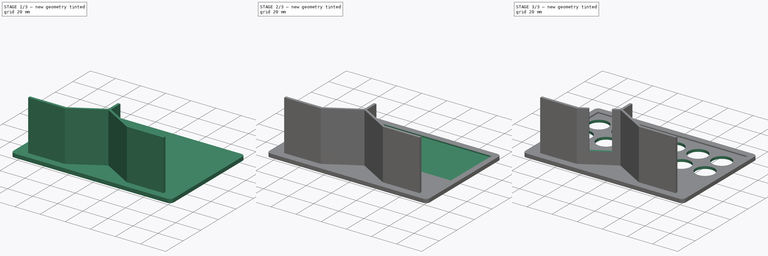
[diagram: build sequence overview — one tinted view per stage of 3, left to right]
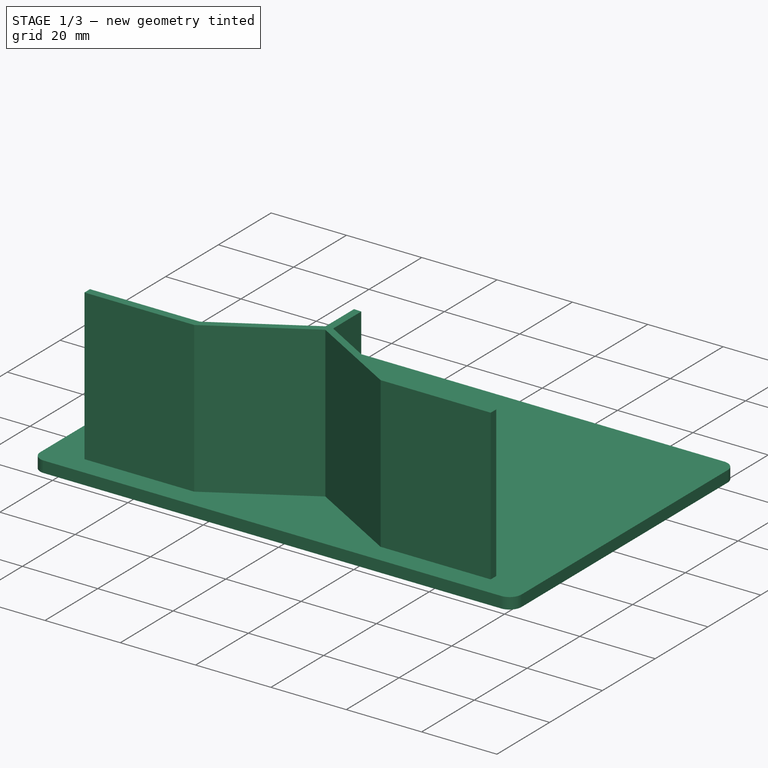
[diagram: stage 1 of 3 — iso view after this stage's code; geometry added in this stage tinted green]
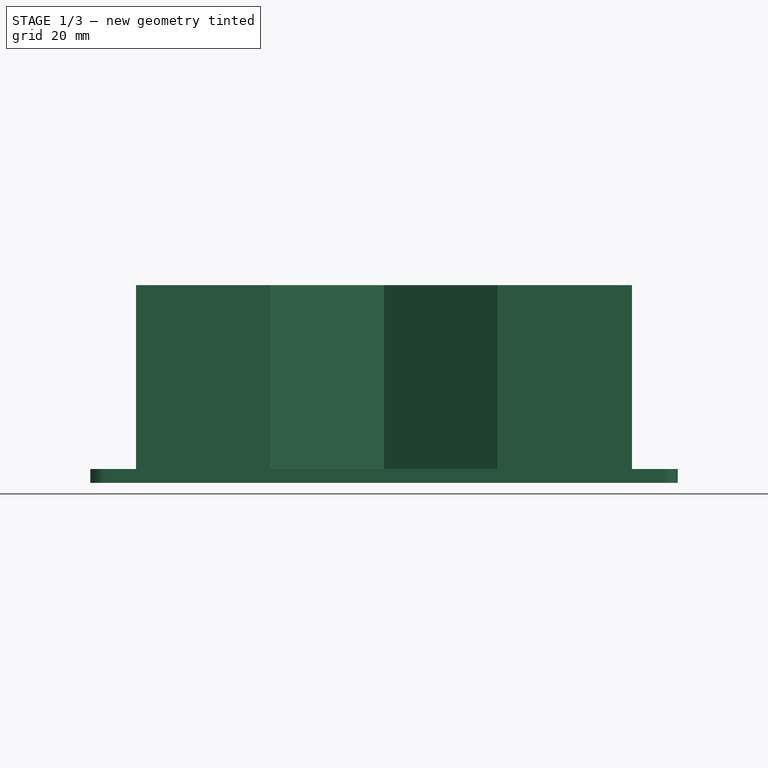
[diagram: stage 1 of 3 — front view after this stage's code; geometry added in this stage tinted green]
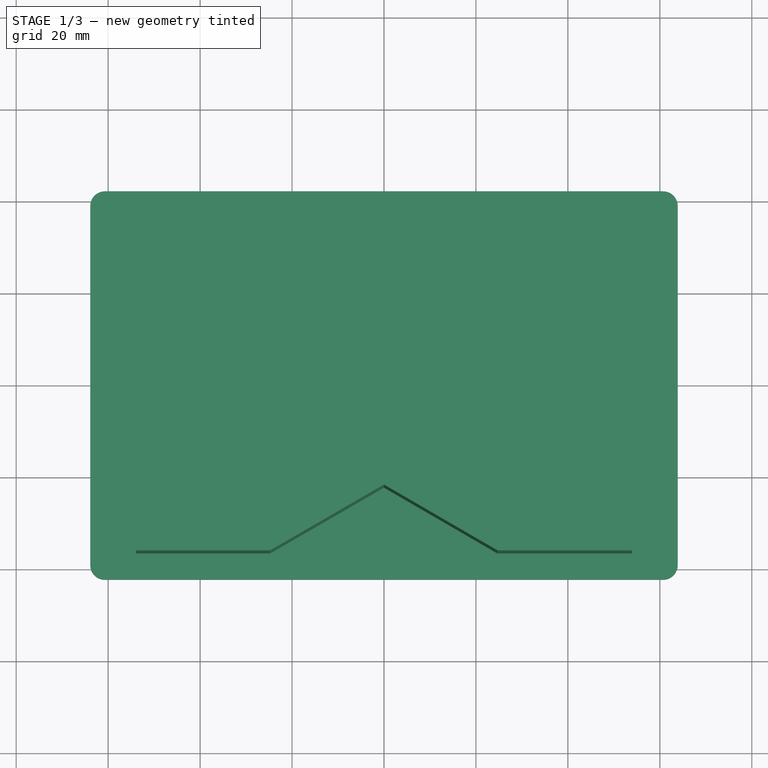
[diagram: stage 1 of 3 — top view after this stage's code; geometry added in this stage tinted green]
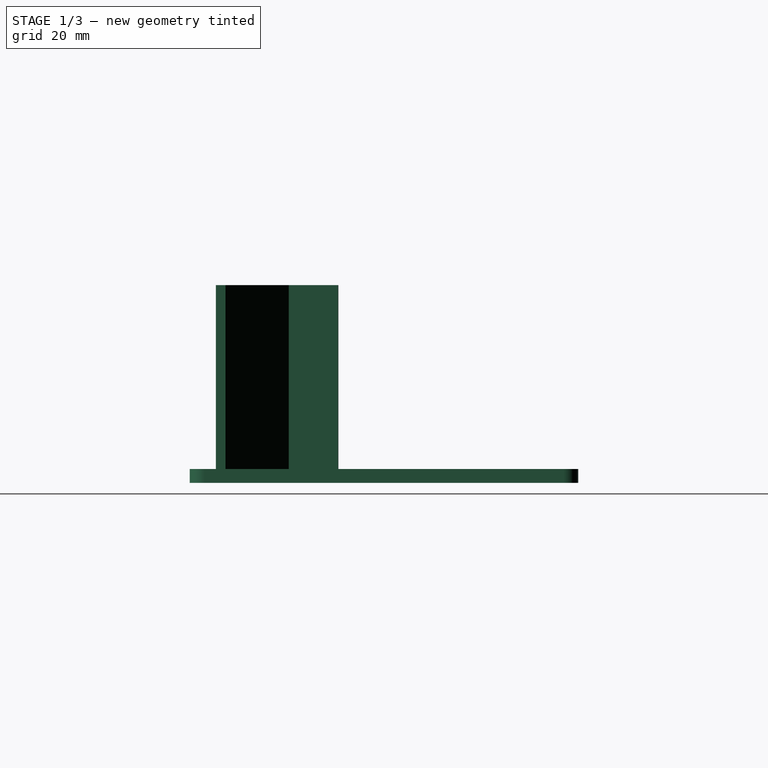
[diagram: stage 1 of 3 — right view after this stage's code; geometry added in this stage tinted green]
FCSTD DOCUMENT  (FreeCAD 0.21R33694 (Git))
Label: collector
License: All rights reserved
LicenseURL: http://en.wikipedia.org/wiki/All_rights_reserved
objects: Sketcher::SketchObject×5, PartDesign::Pocket×3, PartDesign::Pad×2, Spreadsheet::Sheet×1, PartDesign::Body×1
note: 16 computed .brp shape members not serialized (recipe doc carries the construction recipe); baked Part::Feature solids carry a one-line shape summary decoded from their .brp

FEATURE [Sketcher::SketchObject] Sketch  label="sketch_base"
  FullyConstrained = true
  expr: .Constraints.demi_largeur = 127.76 / 2
  expr: Constraints[13] = .Constraints.demi_hauteur
  expr: Constraints[15] = .Constraints.demi_largeur
  sketch-geometry (8):
    g0: LineSegment StartX=-60.7 StartY=42.24 StartZ=0 EndX=60.7 EndY=42.24 EndZ=0
    g1: LineSegment StartX=63.88 StartY=39.06 StartZ=0 EndX=63.88 EndY=-39.06 EndZ=0
    g2: LineSegment StartX=60.7 StartY=-42.24 StartZ=0 EndX=-60.7 EndY=-42.24 EndZ=0
    g3: LineSegment StartX=-63.88 StartY=-39.06 StartZ=0 EndX=-63.88 EndY=39.06 EndZ=0
    g4: ArcOfCircle CenterX=-60.7 CenterY=39.06 CenterZ=0 NormalX=0 NormalY=0 NormalZ=1 AngleXU=0 Radius=3.18 StartAngle=1.5708 EndAngle=3.14159
    g5: ArcOfCircle CenterX=60.7 CenterY=39.06 CenterZ=0 NormalX=0 NormalY=0 NormalZ=1 AngleXU=0 Radius=3.18 StartAngle=-9e-16 EndAngle=1.5708
    g6: ArcOfCircle CenterX=-60.7 CenterY=-39.06 CenterZ=0 NormalX=0 NormalY=0 NormalZ=1 AngleXU=0 Radius=3.18 StartAngle=3.14159 EndAngle=4.71239
    g7: ArcOfCircle CenterX=60.7 CenterY=-39.06 CenterZ=0 NormalX=0 NormalY=0 NormalZ=1 AngleXU=0 Radius=3.18 StartAngle=4.71239 EndAngle=6.28319
  constraints (20):
    c: Horizontal(g0)
    c: Horizontal(g2)
    c: Vertical(g1)
    c: Vertical(g3)
    c: Tangent(g0,g4) = 1.5708
    c: Tangent(g3,g4) = 1.5708
    c: Tangent(g0,g5) = 1.5708
    c: Tangent(g1,g5) = 1.5708
    c: Tangent(g3,g6) = 1.5708
    c: Tangent(g2,g6) = 1.5708
    c: Tangent(g2,g7) = 1.5708
    c: Tangent(g1,g7) = 1.5708
    c: DistanceY(g-1,g0) = 42.24  'demi_hauteur'
    c: DistanceY(g2,g-1) = 42.24
    c: DistanceX(g3,g-1) = 63.88  'demi_largeur'
    c: DistanceX(g-1,g1) = 63.88
    c: Radius(g4) = 3.18
    c: Radius(g5) = 3.18
    c: Equal(g5,g7)
    c: Equal(g5,g6)
FEATURE [PartDesign::Pad] Pad
  AllowMultiFace = false
  Direction = (0,0,1)
  Length = 3
  Length2 = 100
  Profile = -> Sketch
  ReferenceAxis = -> Sketch [N_Axis]
  Type = 0
FEATURE [Spreadsheet::Sheet] Spreadsheet
  cells = A1='r_pot; B1(r_pot)==35.06 / 2; C1='rayon strict du pot à urines; A2='angle_pot; B2(angle_pot)=5; C2='angle d'inclinaison; A3='r_eps; B3(r_eps)=0.5; C3='valeur de jeu
FEATURE [Sketcher::SketchObject] Sketch001  label="front_sketch"
  ExternalGeometry = -> [Pad]
  FullyConstrained = false
  MapMode = 5
  Placement = pos=(0,0,3) rot=(0,0,1;0rad)
  Support = -> [Pad]
  sketch-geometry (16):
    g0: LineSegment StartX=24.688 StartY=-34.4639 StartZ=0 EndX=53.9357 EndY=-34.4639 EndZ=0
    g1: LineSegment StartX=53.9357 StartY=-34.4639 StartZ=0 EndX=53.9357 EndY=-36.5602 EndZ=0
    g2: LineSegment StartX=53.9357 StartY=-36.5602 StartZ=0 EndX=24.688 EndY=-36.5602 EndZ=0
    g3: LineSegment StartX=24.688 StartY=-36.5602 StartZ=0 EndX=0 EndY=-22.24 EndZ=0
    g4: LineSegment StartX=0 StartY=-22.24 StartZ=0 EndX=-24.7821 EndY=-36.5579 EndZ=0
    g5: LineSegment StartX=-24.7821 StartY=-36.5579 StartZ=0 EndX=-53.9357 EndY=-36.5579 EndZ=0
    g6: LineSegment StartX=-53.9357 StartY=-36.5579 StartZ=0 EndX=-53.9357 EndY=-34.4639 EndZ=0
    g7: LineSegment StartX=-53.9357 StartY=-34.4639 StartZ=0 EndX=-24.7821 EndY=-34.4639 EndZ=0
    g8: GeomPoint X=0 Y=-42.24 Z=0
    g9: GeomPoint X=-1 Y=-20.7238 Z=0
    g10: GeomPoint X=1 Y=-20.7238 Z=0
    g11: LineSegment StartX=-1 StartY=-20.7238 StartZ=0 EndX=-24.7821 EndY=-34.4639 EndZ=0
    g12: LineSegment StartX=24.688 StartY=-34.4639 StartZ=0 EndX=1 EndY=-20.7238 EndZ=0
    g13: LineSegment StartX=-1 StartY=-20.7238 StartZ=0 EndX=-1 EndY=-9.93128 EndZ=0
    g14: LineSegment StartX=-1 StartY=-9.93128 StartZ=0 EndX=1 EndY=-10.0377 EndZ=0
    g15: LineSegment StartX=1 StartY=-10.0377 StartZ=0 EndX=1 EndY=-20.7238 EndZ=0
  constraints (33):
    c: Horizontal(g0)
    c: Coincident(g0,g1)
    c: Coincident(g1,g2)
    c: Horizontal(g2)
    c: Coincident(g2,g3)
    c: PointOnObject(g3,g-2)
    c: Coincident(g3,g4)
    c: Coincident(g4,g5)
    c: Horizontal(g5)
    c: Coincident(g5,g6)
    c: Coincident(g6,g7)
    c: Horizontal(g7)
    c: Vertical(g6)
    c: Vertical(g1)
    c: Vertical(g4,g7)
    c: Vertical(g0,g2)
    c: Symmetric(g6,g0,g-2)
    c: PointOnObject(g8,g-4)
    c: DistanceY(g8,g3) = 20
    c: Coincident(g11,g9)
    c: Coincident(g11,g7)
    c: Coincident(g12,g0)
    c: Coincident(g12,g10)
    c: Parallel(g11,g4)
    c: Parallel(g3,g12)
    c: Symmetric(g12,g11,g-2)
    c: DistanceX(g11,g12) = 2
    c: Coincident(g11,g13)
    c: Vertical(g13)
    c: Coincident(g13,g14)
    c: Coincident(g14,g15)
    c: Coincident(g15,g12)
    c: Vertical(g15)
FEATURE [PartDesign::Pad] Pad001  label="front"
  BaseFeature = -> Pad
  Direction = (0,0,1)
  Length = 40
  Length2 = 10
  Profile = -> Sketch001
  ReferenceAxis = -> Sketch001 [N_Axis]
  Type = 0
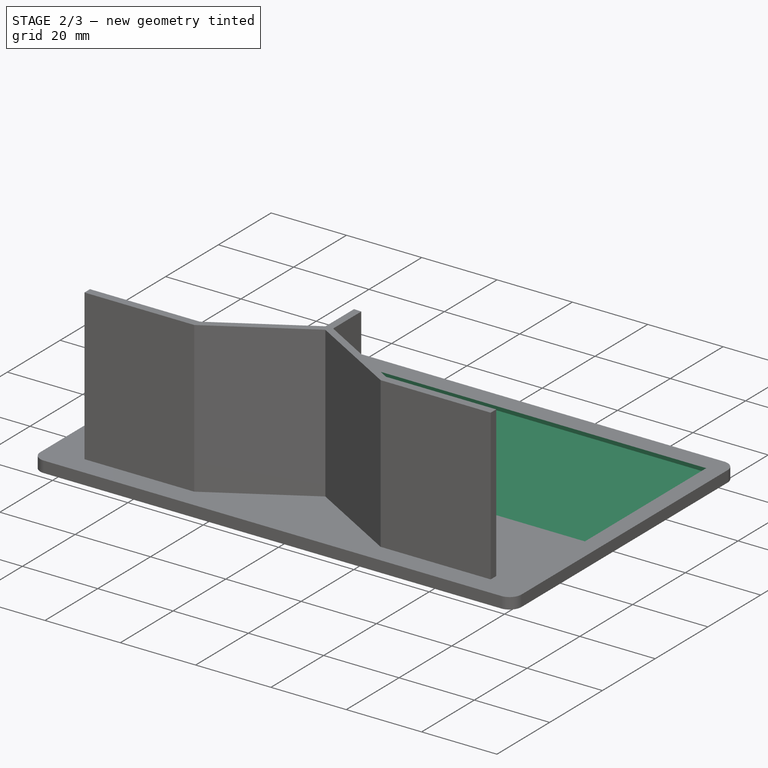
[diagram: stage 2 of 3 — iso view after this stage's code; geometry added in this stage tinted green]
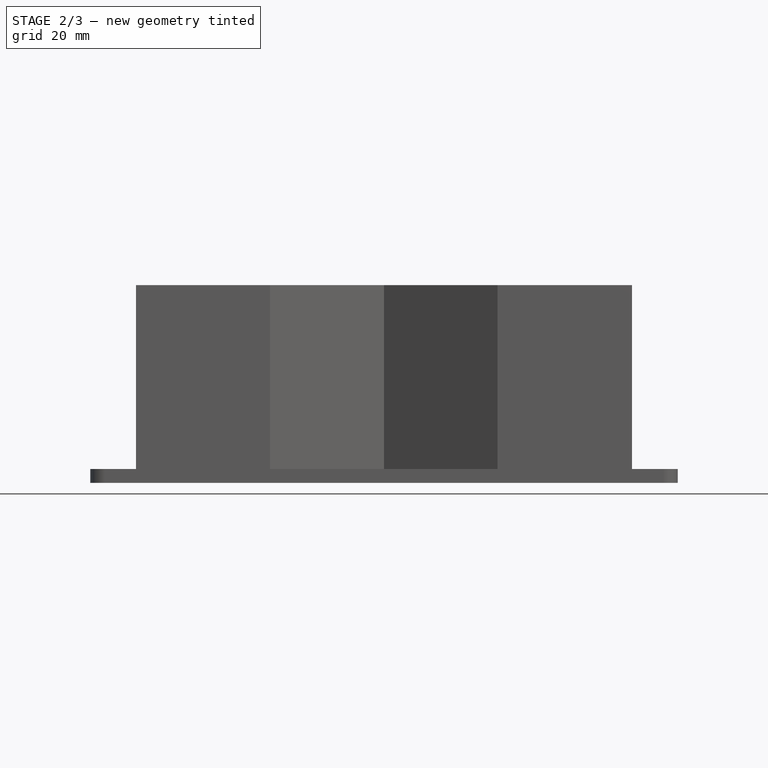
[diagram: stage 2 of 3 — front view after this stage's code; geometry added in this stage tinted green]
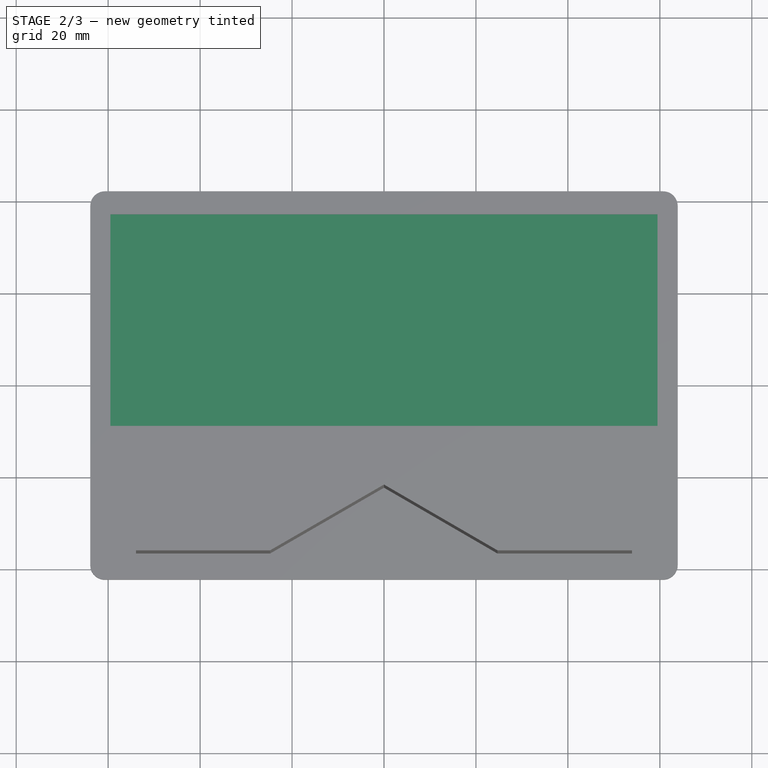
[diagram: stage 2 of 3 — top view after this stage's code; geometry added in this stage tinted green]
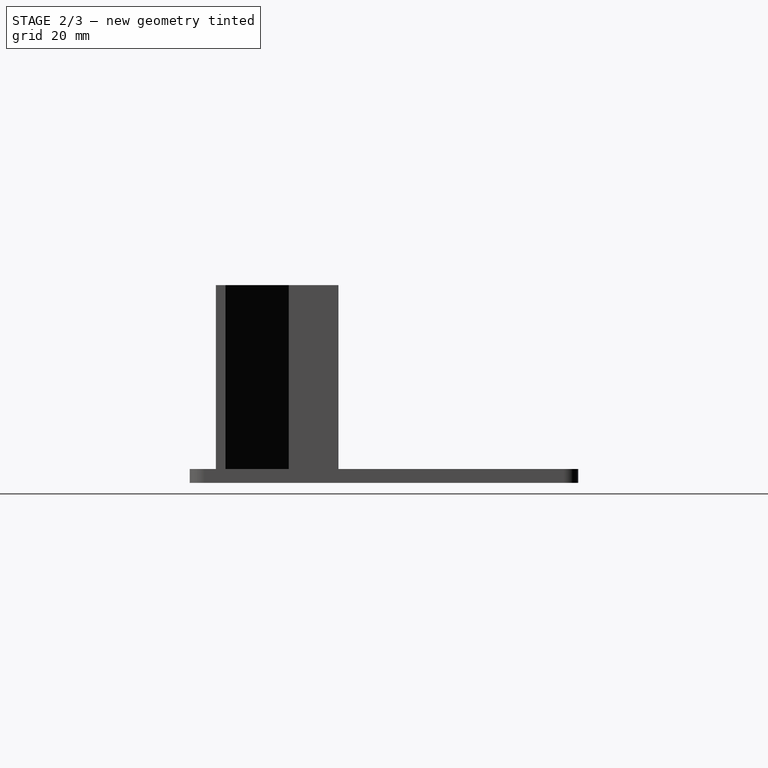
[diagram: stage 2 of 3 — right view after this stage's code; geometry added in this stage tinted green]
FEATURE [Sketcher::SketchObject] Sketch002
  FullyConstrained = false
  MapMode = 5
  Placement = pos=(0,0,3) rot=(0,0,1;0rad)
  Support = -> [Pad001]
  sketch-geometry (4):
    g0: LineSegment StartX=-59.5 StartY=37.2147 StartZ=0 EndX=59.5 EndY=37.2147 EndZ=0
    g1: LineSegment StartX=59.5 StartY=37.2147 StartZ=0 EndX=59.5 EndY=-8.78534 EndZ=0
    g2: LineSegment StartX=59.5 StartY=-8.78534 StartZ=0 EndX=-59.5 EndY=-8.78534 EndZ=0
    g3: LineSegment StartX=-59.5 StartY=-8.78534 StartZ=0 EndX=-59.5 EndY=37.2147 EndZ=0
  constraints (10):
    c: Coincident(g0,g1)
    c: Coincident(g1,g2)
    c: Coincident(g2,g3)
    c: Coincident(g3,g0)
    c: Horizontal(g0)
    c: Vertical(g1)
    c: Vertical(g3)
    c: DistanceX(g0,g0) = 119
    c: DistanceY(g1,g0) = 46
    c: Symmetric(g1,g2,g-2)
FEATURE [PartDesign::Pocket] Pocket  label="breadboard"
  BaseFeature = -> Pad001
  Direction = (0,0,-1)
  Length = 1
  Length2 = 5
  Profile = -> Sketch002
  ReferenceAxis = -> Sketch002 [N_Axis]
  Type = 0
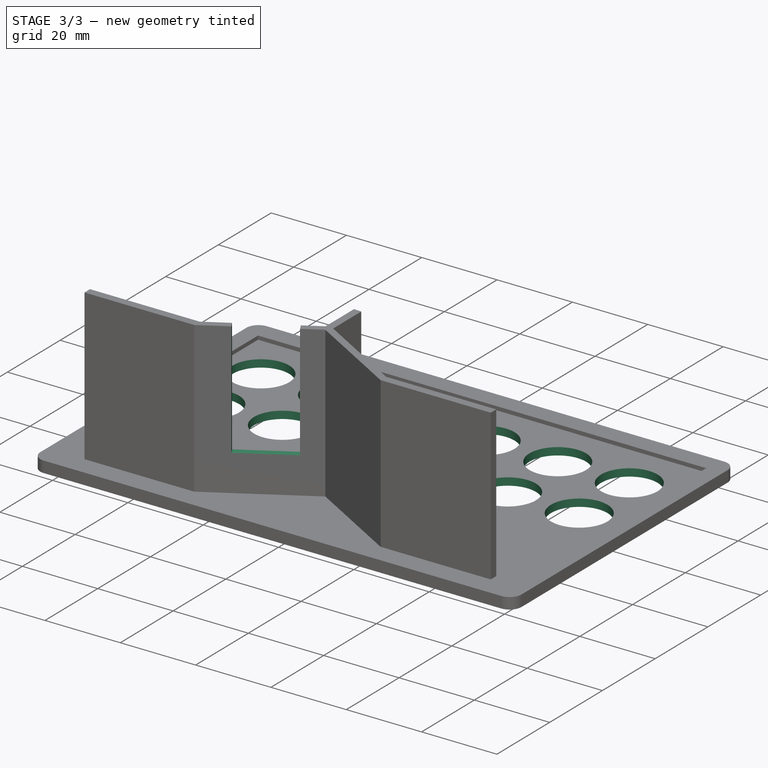
[diagram: stage 3 of 3 — iso view after this stage's code; geometry added in this stage tinted green]
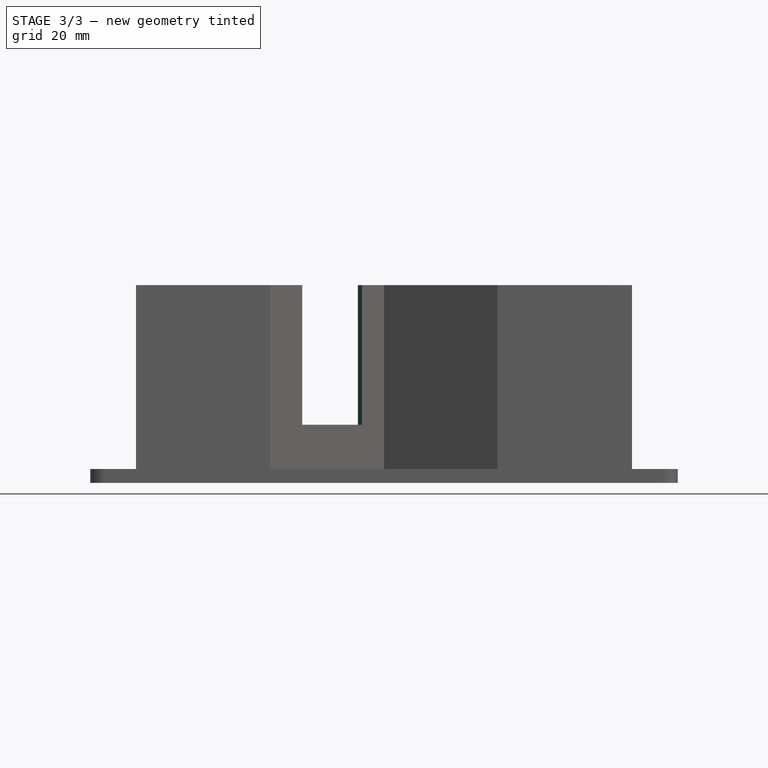
[diagram: stage 3 of 3 — front view after this stage's code; geometry added in this stage tinted green]
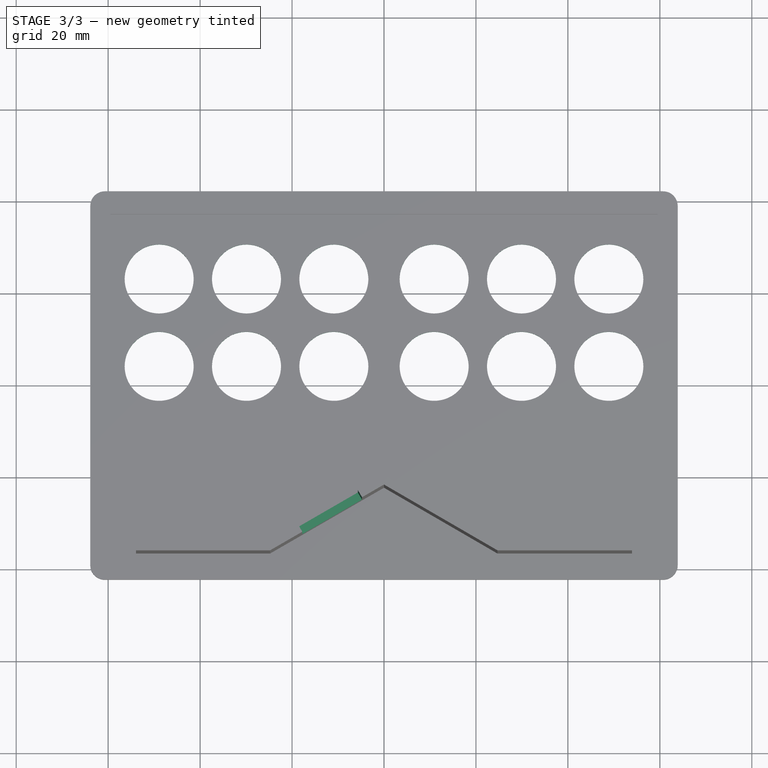
[diagram: stage 3 of 3 — top view after this stage's code; geometry added in this stage tinted green]
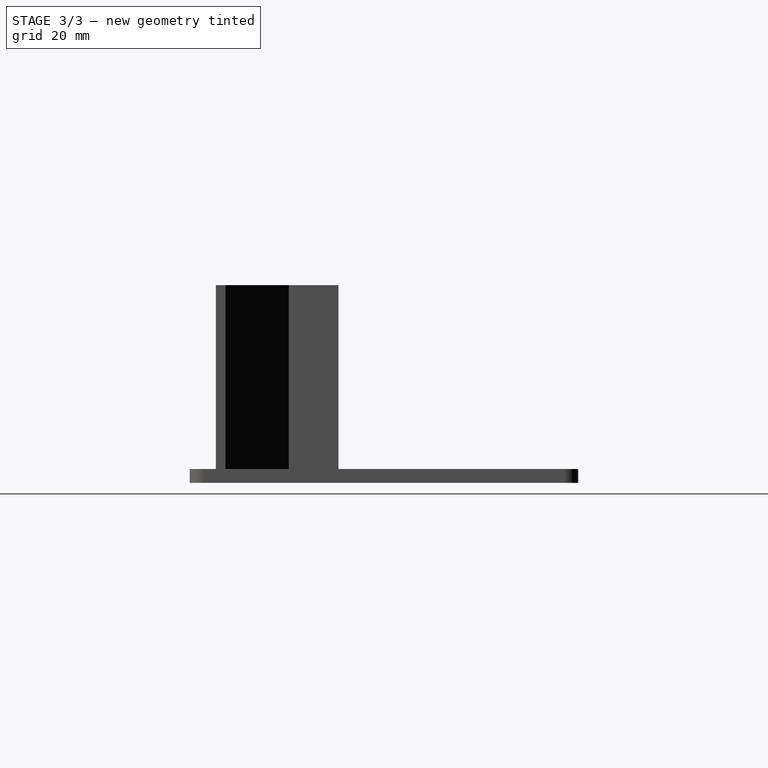
[diagram: stage 3 of 3 — right view after this stage's code; geometry added in this stage tinted green]
FEATURE [Sketcher::SketchObject] Sketch004  label="allègements"
  FullyConstrained = false
  MapMode = 5
  Placement = pos=(0,0,2) rot=(0,0,1;0rad)
  sketch-geometry (17):
    g0: Circle CenterX=-48.9058 CenterY=23.1865 CenterZ=0 NormalX=0 NormalY=0 NormalZ=1 AngleXU=0 Radius=7.5
    g1: Circle CenterX=-29.9058 CenterY=23.1865 CenterZ=0 NormalX=0 NormalY=0 NormalZ=1 AngleXU=0 Radius=7.5
    g2: LineSegment StartX=-48.9058 StartY=23.1865 StartZ=0 EndX=-29.9058 EndY=23.1865 EndZ=0
    g3: Circle CenterX=-10.9058 CenterY=23.1865 CenterZ=0 NormalX=0 NormalY=0 NormalZ=1 AngleXU=0 Radius=7.5
    g4: LineSegment StartX=-29.9058 StartY=23.1865 StartZ=0 EndX=-10.9058 EndY=23.1865 EndZ=0
    g5: Circle CenterX=-48.9058 CenterY=4.18648 CenterZ=0 NormalX=0 NormalY=0 NormalZ=1 AngleXU=0 Radius=7.5
    g6: LineSegment StartX=-48.9058 StartY=23.1865 StartZ=0 EndX=-48.9058 EndY=4.18648 EndZ=0
    g7: Circle CenterX=-29.9058 CenterY=4.18648 CenterZ=0 NormalX=0 NormalY=0 NormalZ=1 AngleXU=0 Radius=7.5
    g8: LineSegment StartX=-48.9058 StartY=4.18648 StartZ=0 EndX=-29.9058 EndY=4.18648 EndZ=0
    g9: Circle CenterX=-10.9058 CenterY=4.18648 CenterZ=0 NormalX=0 NormalY=0 NormalZ=1 AngleXU=0 Radius=7.5
    g10: LineSegment StartX=-29.9058 StartY=4.18648 StartZ=0 EndX=-10.9058 EndY=4.18648 EndZ=0
    g11: Circle CenterX=10.9058 CenterY=23.1865 CenterZ=0 NormalX=0 NormalY=0 NormalZ=1 AngleXU=0 Radius=7.5
    g12: Circle CenterX=29.9058 CenterY=23.1865 CenterZ=0 NormalX=0 NormalY=0 NormalZ=1 AngleXU=0 Radius=7.5
    g13: Circle CenterX=48.9058 CenterY=23.1865 CenterZ=0 NormalX=0 NormalY=0 NormalZ=1 AngleXU=0 Radius=7.5
    g14: Circle CenterX=48.9058 CenterY=4.18648 CenterZ=0 NormalX=0 NormalY=0 NormalZ=1 AngleXU=0 Radius=7.5
    g15: Circle CenterX=29.9058 CenterY=4.18648 CenterZ=0 NormalX=0 NormalY=0 NormalZ=1 AngleXU=0 Radius=7.5
    g16: Circle CenterX=10.9058 CenterY=4.18648 CenterZ=0 NormalX=0 NormalY=0 NormalZ=1 AngleXU=0 Radius=7.5
  constraints (29):
    c: Diameter(g0) = 15
    c: Equal(g0,g1) = 13
    c: Coincident(g0,g2)
    c: Coincident(g1,g2)
    c: Distance(g2) = 19
    c: Angle(g2) = 0
    c: Equal(g0,g3) = 13
    c: Coincident(g1,g4)
    c: Coincident(g3,g4)
    c: Equal(g2,g4)
    c: Parallel(g4,g2)
    c: Equal(g0,g5) = 13
    c: Coincident(g0,g6)
    c: Coincident(g5,g6)
    c: Equal(g6,g2)
    c: Perpendicular(g6,g2)
    c: Equal(g0,g7) = 13
    c: Coincident(g5,g8)
    c: Coincident(g7,g8)
    c: Equal(g2,g8)
    c: Parallel(g8,g2)
    c: Equal(g0,g9) = 13
    c: Coincident(g7,g10)
    c: Coincident(g9,g10)
    c: Equal(g2,g10)
    c: Parallel(g10,g2)
    c: Diameter(g13) = 15
    c: Equal(g13,g12) = 13
    c: Equal(g13,g11) = 13
FEATURE [PartDesign::Pocket] Pocket002  label="allegements"
  BaseFeature = -> Pocket
  Direction = (0,0,-1)
  Length = 5
  Length2 = 5
  Profile = -> Sketch004
  ReferenceAxis = -> Sketch004 [N_Axis]
  Type = 0
FEATURE [Sketcher::SketchObject] Sketch005
  FullyConstrained = false
  MapMode = 5
  Placement = pos=(9.63354,-16.6742,0) rot=(0.935043,0.250694,0.250694;1.63791rad)
  Support = -> [Pocket]
  sketch-geometry (4):
    g0: LineSegment StartX=-31.6509 StartY=45.9228 StartZ=0 EndX=-16.6509 EndY=45.9228 EndZ=0
    g1: LineSegment StartX=-16.6509 StartY=45.9228 StartZ=0 EndX=-16.6509 EndY=12.6487 EndZ=0
    g2: LineSegment StartX=-16.6509 StartY=12.6487 StartZ=0 EndX=-31.6509 EndY=12.6487 EndZ=0
    g3: LineSegment StartX=-31.6509 StartY=12.6487 StartZ=0 EndX=-31.6509 EndY=45.9228 EndZ=0
  constraints (9):
    c: Coincident(g0,g1)
    c: Coincident(g1,g2)
    c: Coincident(g2,g3)
    c: Coincident(g3,g0)
    c: Horizontal(g0)
    c: Horizontal(g2)
    c: Vertical(g1)
    c: Vertical(g3)
    c: DistanceX(g0,g0) = 15
FEATURE [PartDesign::Pocket] Pocket003  label="gros trou bouton"
  BaseFeature = -> Pocket002
  Direction = (-0.50026,0.865875,0)
  Length = 5
  Length2 = 5
  Profile = -> Sketch005
  ReferenceAxis = -> Sketch005 [N_Axis]
  Type = 0
FEATURE [PartDesign::Body] Body  label="rack"
  Group = -> [Sketch,Pad,Sketch001,Pad001,Sketch002,Pocket,Sketch004,Pocket002,Sketch005,Pocket003]
  Origin = -> Origin
  Placement = pos=(0,0,-3) rot=(0,0,1;0rad)
  Tip = -> Pocket003
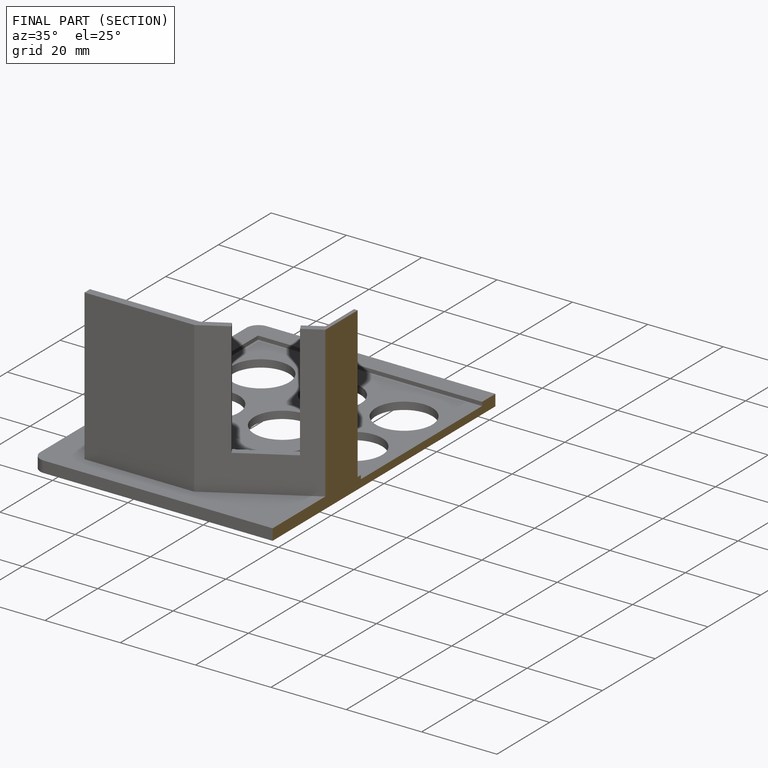
[diagram: finished part — half-section view (interior)]
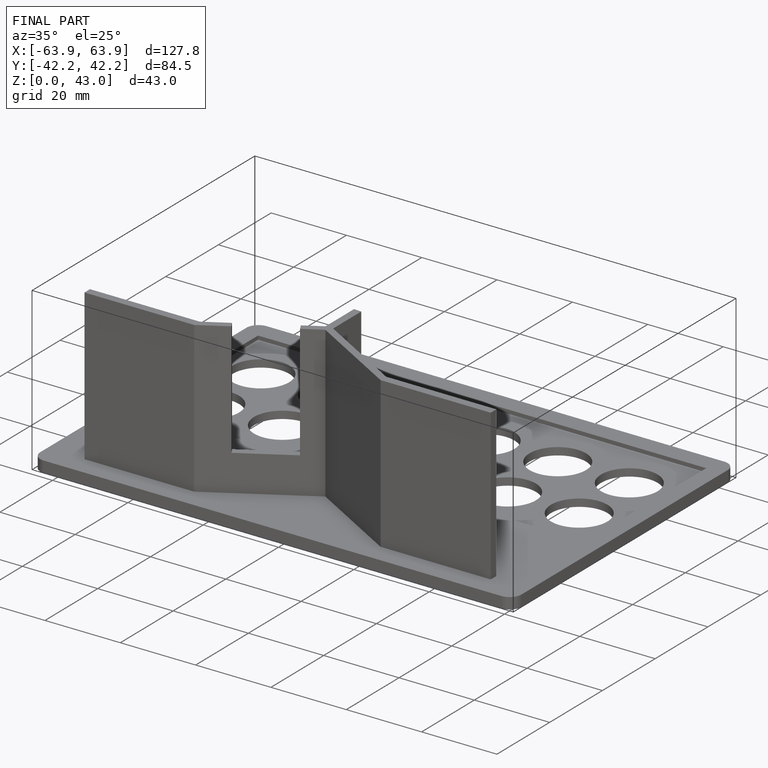
[diagram: finished part — iso view with bounding-box wireframe]
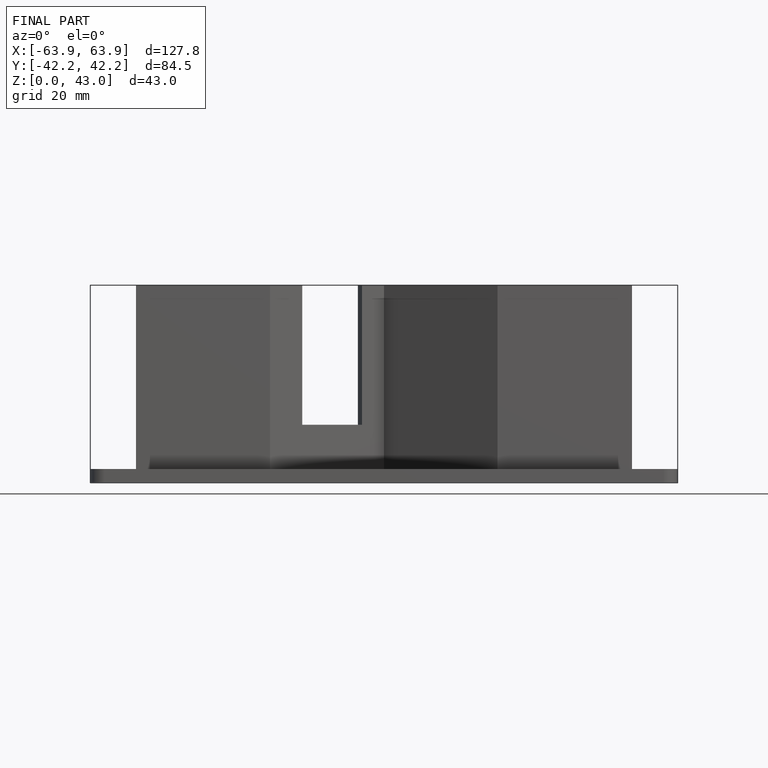
[diagram: finished part — front view with bounding-box wireframe]
